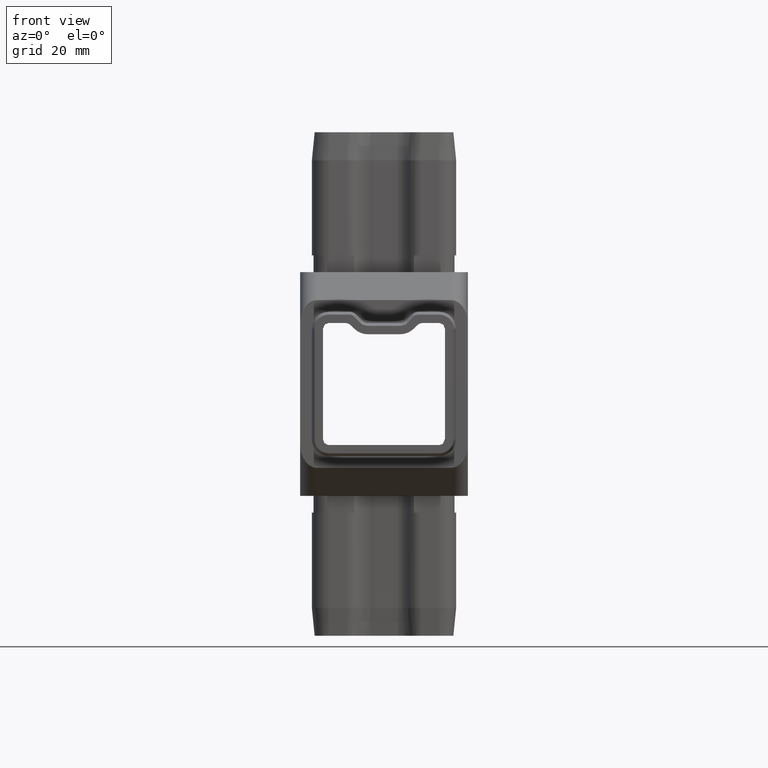
[diagram: clean part render]
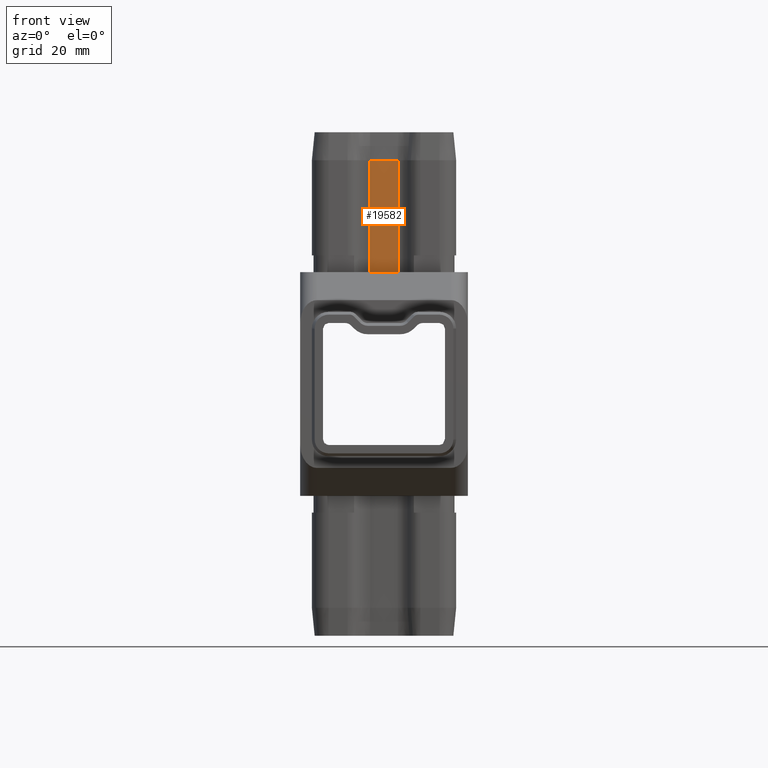
[diagram: same view with one face highlighted and labeled with its STEP entity id]
A machine part, front view. The second image highlights one B-rep face of the part: STEP entity #19582.
In plain terms, the highlighted planar face has unit normal (0, 1, -0).
Its self-contained STEP definition (entity closure, byte-faithful):
#1519 = FACE_OUTER_BOUND ( 'NONE', #15917, .T. ) ;
#1806 = CARTESIAN_POINT ( 'NONE',  ( -2.481425013199130900, -10.89999999999999300, 40.00000000000000000 ) ) ;
#2877 = VERTEX_POINT ( 'NONE', #10661 ) ;
#5732 = VECTOR ( 'NONE', #8454, 1000.000000000000000 ) ;
#8454 = DIRECTION ( 'NONE',  ( -0.0000000000000000000, -0.0000000000000000000, -1.000000000000000000 ) ) ;
#8678 = CARTESIAN_POINT ( 'NONE',  ( -2.481425013199127300, -10.89999999999999900, 20.00000000000000000 ) ) ;
#9051 = CARTESIAN_POINT ( 'NONE',  ( -2.481425013199127300, -10.89999999999999900, 45.00000000000000000 ) ) ;
#10661 = CARTESIAN_POINT ( 'NONE',  ( 2.481425013199126500, -10.89999999999999300, 40.00000000000000000 ) ) ;
#12086 = AXIS2_PLACEMENT_3D ( 'NONE', #18713, #31675, #13415 ) ;
#12252 = ORIENTED_EDGE ( 'NONE', *, *, #18999, .T. ) ;
#13415 = DIRECTION ( 'NONE',  ( 0.0000000000000000000, 0.0000000000000000000, 1.000000000000000000 ) ) ;
#13819 = CARTESIAN_POINT ( 'NONE',  ( 2.481425013199130000, -10.89999999999999900, 20.00000000000000000 ) ) ;
#13866 = PLANE ( 'NONE',  #12086 ) ;
#13989 = VECTOR ( 'NONE', #29974, 1000.000000000000000 ) ;
#14644 = CARTESIAN_POINT ( 'NONE',  ( 2.481425013199130000, -10.89999999999999900, 20.00000000000000000 ) ) ;
#15274 = ORIENTED_EDGE ( 'NONE', *, *, #24688, .F. ) ;
#15917 = EDGE_LOOP ( 'NONE', ( #15274, #22740, #12252, #27961 ) ) ;
#16114 = CARTESIAN_POINT ( 'NONE',  ( 2.481425013199126500, -10.89999999999999300, 40.00000000000000000 ) ) ;
#18236 = EDGE_CURVE ( 'NONE', #20209, #19053, #20864, .T. ) ;
#18713 = CARTESIAN_POINT ( 'NONE',  ( 2.481425013199130000, -10.89999999999999900, 45.00000000000000000 ) ) ;
#18936 = CARTESIAN_POINT ( 'NONE',  ( 2.481425013199130000, -10.89999999999999900, 45.00000000000000000 ) ) ;
#18999 = EDGE_CURVE ( 'NONE', #24450, #20209, #22508, .T. ) ;
#19053 = VERTEX_POINT ( 'NONE', #13819 ) ;
#19582 = ADVANCED_FACE ( 'NONE', ( #1519 ), #13866, .F. ) ;
#20060 = VECTOR ( 'NONE', #26771, 1000.000000000000000 ) ;
#20209 = VERTEX_POINT ( 'NONE', #8678 ) ;
#20864 = LINE ( 'NONE', #14644, #13989 ) ;
#22508 = LINE ( 'NONE', #9051, #20060 ) ;
#22740 = ORIENTED_EDGE ( 'NONE', *, *, #33407, .T. ) ;
#23580 = DIRECTION ( 'NONE',  ( -1.000000000000000000, 0.0000000000000000000, 0.0000000000000000000 ) ) ;
#24450 = VERTEX_POINT ( 'NONE', #1806 ) ;
#24688 = EDGE_CURVE ( 'NONE', #2877, #19053, #29162, .T. ) ;
#25444 = VECTOR ( 'NONE', #23580, 1000.000000000000000 ) ;
#26771 = DIRECTION ( 'NONE',  ( -0.0000000000000000000, -0.0000000000000000000, -1.000000000000000000 ) ) ;
#27961 = ORIENTED_EDGE ( 'NONE', *, *, #18236, .T. ) ;
#29162 = LINE ( 'NONE', #18936, #5732 ) ;
#29490 = LINE ( 'NONE', #16114, #25444 ) ;
#29974 = DIRECTION ( 'NONE',  ( 1.000000000000000000, -0.0000000000000000000, -0.0000000000000000000 ) ) ;
#31675 = DIRECTION ( 'NONE',  ( 0.0000000000000000000, 1.000000000000000000, -0.0000000000000000000 ) ) ;
#33407 = EDGE_CURVE ( 'NONE', #2877, #24450, #29490, .T. ) ;